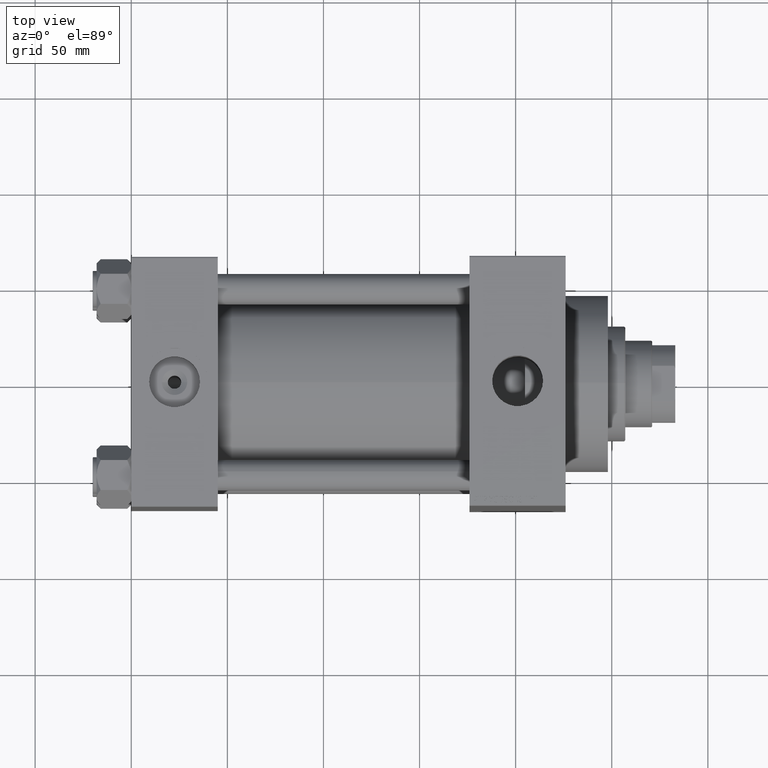
[diagram: clean part render]
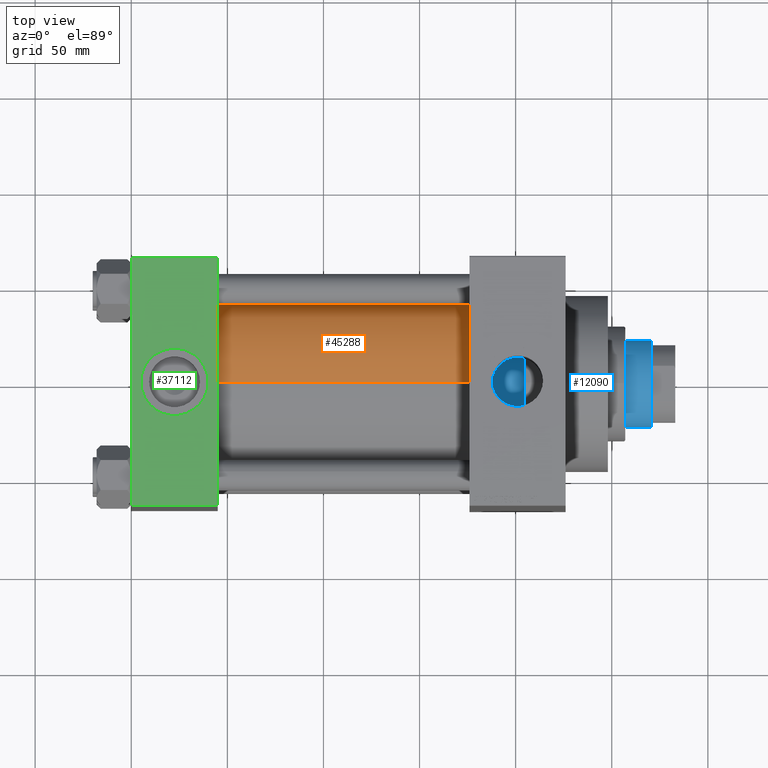
[diagram: same view with three faces highlighted in distinct colors, each labeled with its STEP entity id]
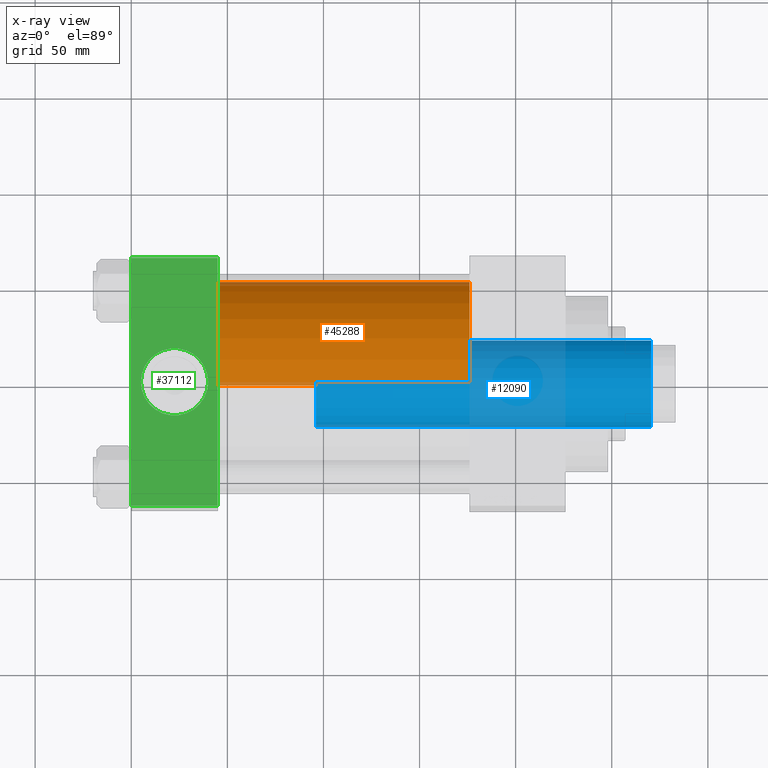
[diagram: x-ray of the same camera — body ghosted, the three highlighted faces saturated]
A machine part, top view with three faces highlighted in distinct colors.
The next image is the same camera in x-ray (body ghosted, the three faces saturated) — at least one of them is partly hidden behind the body in this view.
Their STEP definitions:

[orange] entity #45288 — the highlighted cylindrical surface (partial cylindrical patch) has radius 53 mm, axis along (-1, -0, -0).
#865 = CARTESIAN_POINT ( 'NONE',  ( 176.0000000000000000, 3.888542821515762466E-15, -53.00000000000000711 ) ) ;
#2773 = CARTESIAN_POINT ( 'NONE',  ( 176.0000000000000000, -2.602085213965210642E-15, 0.000000000000000000 ) ) ;
#3659 = AXIS2_PLACEMENT_3D ( 'NONE', #42023, #41781, #35024 ) ;
#5172 = ORIENTED_EDGE ( 'NONE', *, *, #39301, .F. ) ;
#6124 = AXIS2_PLACEMENT_3D ( 'NONE', #30762, #42090, #24040 ) ;
#6370 = ORIENTED_EDGE ( 'NONE', *, *, #15466, .T. ) ;
#8201 = AXIS2_PLACEMENT_3D ( 'NONE', #2773, #13630, #21110 ) ;
#9290 = CARTESIAN_POINT ( 'NONE',  ( 176.0000000000000000, 3.888542821515762466E-15, -53.00000000000000711 ) ) ;
#9658 = CARTESIAN_POINT ( 'NONE',  ( 176.0000000000000000, -2.602085213965210642E-15, 53.00000000000000711 ) ) ;
#10645 = EDGE_CURVE ( 'NONE', #42046, #27408, #35361, .T. ) ;
#13630 = DIRECTION ( 'NONE',  ( 1.000000000000000000, 0.000000000000000000, 0.000000000000000000 ) ) ;
#13756 = ORIENTED_EDGE ( 'NONE', *, *, #32216, .F. ) ;
#14167 = VECTOR ( 'NONE', #31095, 1000.000000000000000 ) ;
#15466 = EDGE_CURVE ( 'NONE', #16912, #42046, #34590, .T. ) ;
#15568 = DIRECTION ( 'NONE',  ( -1.000000000000000000, -0.000000000000000000, -0.000000000000000000 ) ) ;
#16728 = FACE_OUTER_BOUND ( 'NONE', #17260, .T. ) ;
#16912 = VERTEX_POINT ( 'NONE', #9290 ) ;
#17260 = EDGE_LOOP ( 'NONE', ( #5172, #6370, #46127, #13756 ) ) ;
#20199 = CARTESIAN_POINT ( 'NONE',  ( 44.99999999999998579, 3.888542821515762466E-15, -53.00000000000000711 ) ) ;
#21110 = DIRECTION ( 'NONE',  ( 0.000000000000000000, 0.000000000000000000, -1.000000000000000000 ) ) ;
#22975 = VERTEX_POINT ( 'NONE', #38715 ) ;
#24040 = DIRECTION ( 'NONE',  ( 0.000000000000000000, 0.000000000000000000, 1.000000000000000000 ) ) ;
#27408 = VERTEX_POINT ( 'NONE', #36760 ) ;
#27960 = LINE ( 'NONE', #9658, #14167 ) ;
#28978 = CIRCLE ( 'NONE', #8201, 53.00000000000000711 ) ;
#30762 = CARTESIAN_POINT ( 'NONE',  ( 44.99999999999998579, -2.602085213965210642E-15, 0.000000000000000000 ) ) ;
#31095 = DIRECTION ( 'NONE',  ( -1.000000000000000000, -0.000000000000000000, -0.000000000000000000 ) ) ;
#31171 = CYLINDRICAL_SURFACE ( 'NONE', #3659, 53.00000000000000711 ) ;
#32216 = EDGE_CURVE ( 'NONE', #22975, #27408, #27960, .T. ) ;
#34590 = LINE ( 'NONE', #865, #40895 ) ;
#35024 = DIRECTION ( 'NONE',  ( 0.000000000000000000, 0.000000000000000000, 1.000000000000000000 ) ) ;
#35361 = CIRCLE ( 'NONE', #6124, 53.00000000000000711 ) ;
#36760 = CARTESIAN_POINT ( 'NONE',  ( 44.99999999999998579, -2.602085213965210642E-15, 53.00000000000000711 ) ) ;
#38715 = CARTESIAN_POINT ( 'NONE',  ( 176.0000000000000000, -2.602085213965210642E-15, 53.00000000000000711 ) ) ;
#39301 = EDGE_CURVE ( 'NONE', #16912, #22975, #28978, .T. ) ;
#40895 = VECTOR ( 'NONE', #15568, 1000.000000000000000 ) ;
#41781 = DIRECTION ( 'NONE',  ( -1.000000000000000000, -0.000000000000000000, -0.000000000000000000 ) ) ;
#42023 = CARTESIAN_POINT ( 'NONE',  ( 176.0000000000000000, -2.602085213965210642E-15, 0.000000000000000000 ) ) ;
#42046 = VERTEX_POINT ( 'NONE', #20199 ) ;
#42090 = DIRECTION ( 'NONE',  ( 1.000000000000000000, -0.000000000000000000, 0.000000000000000000 ) ) ;
#45288 = ADVANCED_FACE ( 'NONE', ( #16728 ), #31171, .T. ) ;
#46127 = ORIENTED_EDGE ( 'NONE', *, *, #10645, .T. ) ;

[blue] entity #12090 — the highlighted cylindrical surface (partial cylindrical patch) has radius 22.5 mm, axis along (-1, 0, 0).
#615 = DIRECTION ( 'NONE',  ( 1.000000000000000000, 0.000000000000000000, 0.000000000000000000 ) ) ;
#1018 = VECTOR ( 'NONE', #47063, 1000.000000000000000 ) ;
#1020 = FACE_OUTER_BOUND ( 'NONE', #12985, .T. ) ;
#1373 = CARTESIAN_POINT ( 'NONE',  ( -22.50000000000000355, 0.000000000000000000, 225.9999999999999716 ) ) ;
#1469 = CARTESIAN_POINT ( 'NONE',  ( -22.50000000000000355, 0.000000000000000000, 225.4999999999999716 ) ) ;
#4532 = VERTEX_POINT ( 'NONE', #45919 ) ;
#5589 = DIRECTION ( 'NONE',  ( -0.000000000000000000, -0.000000000000000000, -1.000000000000000000 ) ) ;
#9870 = ORIENTED_EDGE ( 'NONE', *, *, #14532, .T. ) ;
#12090 = ADVANCED_FACE ( 'NONE', ( #1020 ), #15724, .T. ) ;
#12985 = EDGE_LOOP ( 'NONE', ( #40567, #9870, #32128, #27735 ) ) ;
#14411 = CARTESIAN_POINT ( 'NONE',  ( 22.50000000000000355, 2.755455298081545172E-15, 225.4999999999999716 ) ) ;
#14532 = EDGE_CURVE ( 'NONE', #22270, #40706, #43153, .T. ) ;
#15724 = CYLINDRICAL_SURFACE ( 'NONE', #23102, 22.50000000000000355 ) ;
#16193 = DIRECTION ( 'NONE',  ( 0.000000000000000000, 0.000000000000000000, 1.000000000000000000 ) ) ;
#16557 = VECTOR ( 'NONE', #41860, 1000.000000000000000 ) ;
#19881 = EDGE_CURVE ( 'NONE', #22270, #4532, #21773, .T. ) ;
#20147 = CARTESIAN_POINT ( 'NONE',  ( 0.000000000000000000, 0.000000000000000000, 225.4999999999999716 ) ) ;
#21773 = LINE ( 'NONE', #47301, #1018 ) ;
#22270 = VERTEX_POINT ( 'NONE', #14411 ) ;
#22775 = EDGE_CURVE ( 'NONE', #43025, #4532, #44983, .T. ) ;
#23102 = AXIS2_PLACEMENT_3D ( 'NONE', #26803, #5589, #45118 ) ;
#26637 = DIRECTION ( 'NONE',  ( 0.000000000000000000, 0.000000000000000000, -1.000000000000000000 ) ) ;
#26803 = CARTESIAN_POINT ( 'NONE',  ( 0.000000000000000000, 0.000000000000000000, 225.9999999999999716 ) ) ;
#27205 = EDGE_CURVE ( 'NONE', #40706, #43025, #44994, .T. ) ;
#27259 = AXIS2_PLACEMENT_3D ( 'NONE', #30635, #16193, #27505 ) ;
#27505 = DIRECTION ( 'NONE',  ( 1.000000000000000000, 0.000000000000000000, 0.000000000000000000 ) ) ;
#27735 = ORIENTED_EDGE ( 'NONE', *, *, #22775, .T. ) ;
#30635 = CARTESIAN_POINT ( 'NONE',  ( 0.000000000000000000, 0.000000000000000000, 51.00000000000000000 ) ) ;
#32128 = ORIENTED_EDGE ( 'NONE', *, *, #27205, .T. ) ;
#35448 = AXIS2_PLACEMENT_3D ( 'NONE', #20147, #26637, #615 ) ;
#35526 = CARTESIAN_POINT ( 'NONE',  ( -22.50000000000000355, 0.000000000000000000, 51.00000000000000000 ) ) ;
#40567 = ORIENTED_EDGE ( 'NONE', *, *, #19881, .F. ) ;
#40706 = VERTEX_POINT ( 'NONE', #1469 ) ;
#41860 = DIRECTION ( 'NONE',  ( -0.000000000000000000, -0.000000000000000000, -1.000000000000000000 ) ) ;
#43025 = VERTEX_POINT ( 'NONE', #35526 ) ;
#43153 = CIRCLE ( 'NONE', #35448, 22.50000000000000355 ) ;
#44983 = CIRCLE ( 'NONE', #27259, 22.50000000000000355 ) ;
#44994 = LINE ( 'NONE', #1373, #16557 ) ;
#45118 = DIRECTION ( 'NONE',  ( -1.000000000000000000, 0.000000000000000000, 0.000000000000000000 ) ) ;
#45919 = CARTESIAN_POINT ( 'NONE',  ( 22.50000000000000355, 2.755455298081545172E-15, 51.00000000000000000 ) ) ;
#47063 = DIRECTION ( 'NONE',  ( -0.000000000000000000, -0.000000000000000000, -1.000000000000000000 ) ) ;
#47301 = CARTESIAN_POINT ( 'NONE',  ( 22.50000000000000355, 2.755455298081545172E-15, 225.9999999999999716 ) ) ;

[green] entity #37112 — the highlighted planar face has unit normal (0, 0, -1).
#662 = DIRECTION ( 'NONE',  ( 0.000000000000000000, 0.000000000000000000, 1.000000000000000000 ) ) ;
#3095 = LINE ( 'NONE', #32014, #42703 ) ;
#3855 = CARTESIAN_POINT ( 'NONE',  ( 0.000000000000000000, -64.49999999999997158, 65.00000000000000000 ) ) ;
#6464 = AXIS2_PLACEMENT_3D ( 'NONE', #23123, #12259, #26952 ) ;
#6521 = CIRCLE ( 'NONE', #26545, 17.50000000000000000 ) ;
#7857 = CARTESIAN_POINT ( 'NONE',  ( 45.00000000000000000, 65.00000000000000000, 65.00000000000001421 ) ) ;
#8137 = CARTESIAN_POINT ( 'NONE',  ( 22.50000000000000000, -8.673617379884035472E-15, 65.00000000000000000 ) ) ;
#8900 = AXIS2_PLACEMENT_3D ( 'NONE', #46147, #27834, #36003 ) ;
#10780 = CARTESIAN_POINT ( 'NONE',  ( 45.00000000000000000, -64.49999999999997158, 65.00000000000000000 ) ) ;
#11004 = CARTESIAN_POINT ( 'NONE',  ( 0.000000000000000000, 65.00000000000000000, 65.00000000000001421 ) ) ;
#12259 = DIRECTION ( 'NONE',  ( 0.000000000000000000, 0.000000000000000000, 1.000000000000000000 ) ) ;
#14483 = EDGE_CURVE ( 'NONE', #26876, #19099, #14613, .T. ) ;
#14613 = LINE ( 'NONE', #11004, #42379 ) ;
#14920 = CIRCLE ( 'NONE', #6464, 17.50000000000000000 ) ;
#15367 = DIRECTION ( 'NONE',  ( 1.000000000000000000, 0.000000000000000000, 0.000000000000000000 ) ) ;
#15655 = CARTESIAN_POINT ( 'NONE',  ( 45.00000000000000000, -64.49999999999997158, 65.00000000000000000 ) ) ;
#19099 = VERTEX_POINT ( 'NONE', #3855 ) ;
#19114 = VECTOR ( 'NONE', #47384, 1000.000000000000000 ) ;
#19122 = EDGE_CURVE ( 'NONE', #19099, #31421, #23376, .T. ) ;
#19806 = CARTESIAN_POINT ( 'NONE',  ( 45.00000000000000000, 64.49999999999997158, 65.00000000000001421 ) ) ;
#20133 = CARTESIAN_POINT ( 'NONE',  ( 4.999999999999997335, -6.530485481376167224E-15, 65.00000000000000000 ) ) ;
#20241 = VECTOR ( 'NONE', #26729, 1000.000000000000000 ) ;
#23123 = CARTESIAN_POINT ( 'NONE',  ( 22.50000000000000000, -8.673617379884035472E-15, 65.00000000000000000 ) ) ;
#23376 = LINE ( 'NONE', #15655, #20241 ) ;
#24003 = FACE_BOUND ( 'NONE', #45274, .T. ) ;
#25096 = ORIENTED_EDGE ( 'NONE', *, *, #42726, .F. ) ;
#25228 = DIRECTION ( 'NONE',  ( 0.000000000000000000, -1.000000000000000000, -1.067522139062650425E-16 ) ) ;
#25277 = EDGE_CURVE ( 'NONE', #44186, #27528, #14920, .T. ) ;
#26545 = AXIS2_PLACEMENT_3D ( 'NONE', #8137, #662, #15367 ) ;
#26729 = DIRECTION ( 'NONE',  ( 1.000000000000000000, 0.000000000000000000, 0.000000000000000000 ) ) ;
#26829 = ORIENTED_EDGE ( 'NONE', *, *, #27108, .F. ) ;
#26876 = VERTEX_POINT ( 'NONE', #39835 ) ;
#26952 = DIRECTION ( 'NONE',  ( 1.000000000000000000, 0.000000000000000000, 0.000000000000000000 ) ) ;
#27064 = ORIENTED_EDGE ( 'NONE', *, *, #14483, .T. ) ;
#27108 = EDGE_CURVE ( 'NONE', #27528, #44186, #6521, .T. ) ;
#27528 = VERTEX_POINT ( 'NONE', #20133 ) ;
#27703 = ORIENTED_EDGE ( 'NONE', *, *, #25277, .F. ) ;
#27834 = DIRECTION ( 'NONE',  ( 0.000000000000000000, 1.067522139062650548E-16, -1.000000000000000000 ) ) ;
#28941 = ORIENTED_EDGE ( 'NONE', *, *, #19122, .T. ) ;
#30598 = ORIENTED_EDGE ( 'NONE', *, *, #35751, .T. ) ;
#31421 = VERTEX_POINT ( 'NONE', #10780 ) ;
#31439 = PLANE ( 'NONE',  #8900 ) ;
#31702 = CARTESIAN_POINT ( 'NONE',  ( 40.00000000000000000, -8.673617379884035472E-15, 65.00000000000000000 ) ) ;
#32014 = CARTESIAN_POINT ( 'NONE',  ( 0.000000000000000000, 64.49999999999997158, 65.00000000000001421 ) ) ;
#35191 = EDGE_LOOP ( 'NONE', ( #27064, #28941, #25096, #30598 ) ) ;
#35751 = EDGE_CURVE ( 'NONE', #47099, #26876, #3095, .T. ) ;
#36003 = DIRECTION ( 'NONE',  ( 0.000000000000000000, 1.000000000000000000, 1.067522139062650548E-16 ) ) ;
#37112 = ADVANCED_FACE ( 'NONE', ( #24003, #38677 ), #31439, .F. ) ;
#38677 = FACE_OUTER_BOUND ( 'NONE', #35191, .T. ) ;
#39835 = CARTESIAN_POINT ( 'NONE',  ( 0.000000000000000000, 64.49999999999997158, 65.00000000000001421 ) ) ;
#40860 = LINE ( 'NONE', #7857, #19114 ) ;
#42379 = VECTOR ( 'NONE', #25228, 1000.000000000000000 ) ;
#42703 = VECTOR ( 'NONE', #43574, 1000.000000000000000 ) ;
#42726 = EDGE_CURVE ( 'NONE', #47099, #31421, #40860, .T. ) ;
#43574 = DIRECTION ( 'NONE',  ( -1.000000000000000000, 0.000000000000000000, 0.000000000000000000 ) ) ;
#44186 = VERTEX_POINT ( 'NONE', #31702 ) ;
#45274 = EDGE_LOOP ( 'NONE', ( #27703, #26829 ) ) ;
#46147 = CARTESIAN_POINT ( 'NONE',  ( 45.00000000000000000, 65.00000000000000000, 65.00000000000001421 ) ) ;
#47099 = VERTEX_POINT ( 'NONE', #19806 ) ;
#47384 = DIRECTION ( 'NONE',  ( 0.000000000000000000, -1.000000000000000000, -1.067522139062650425E-16 ) ) ;